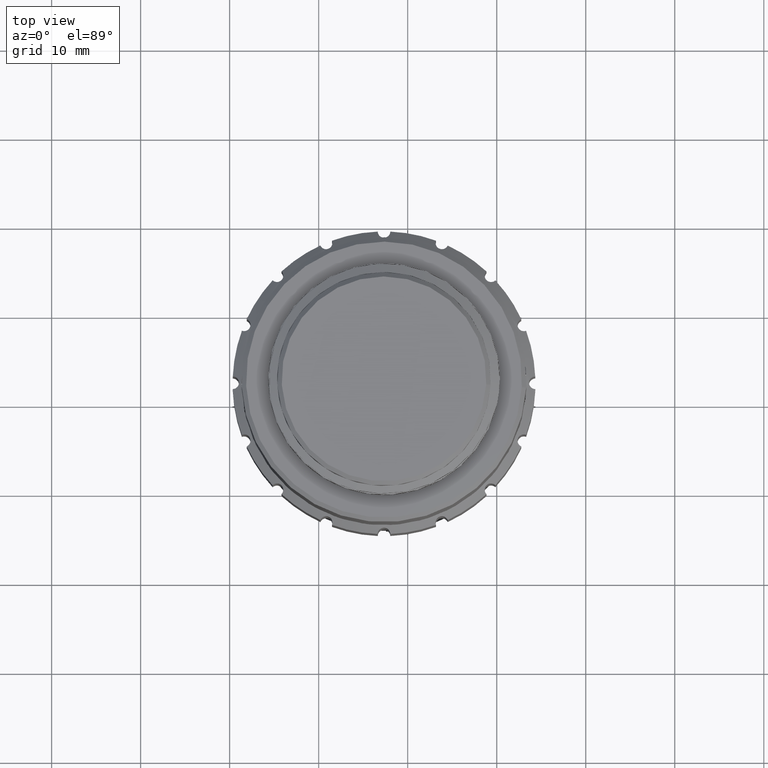
[diagram: clean part render]
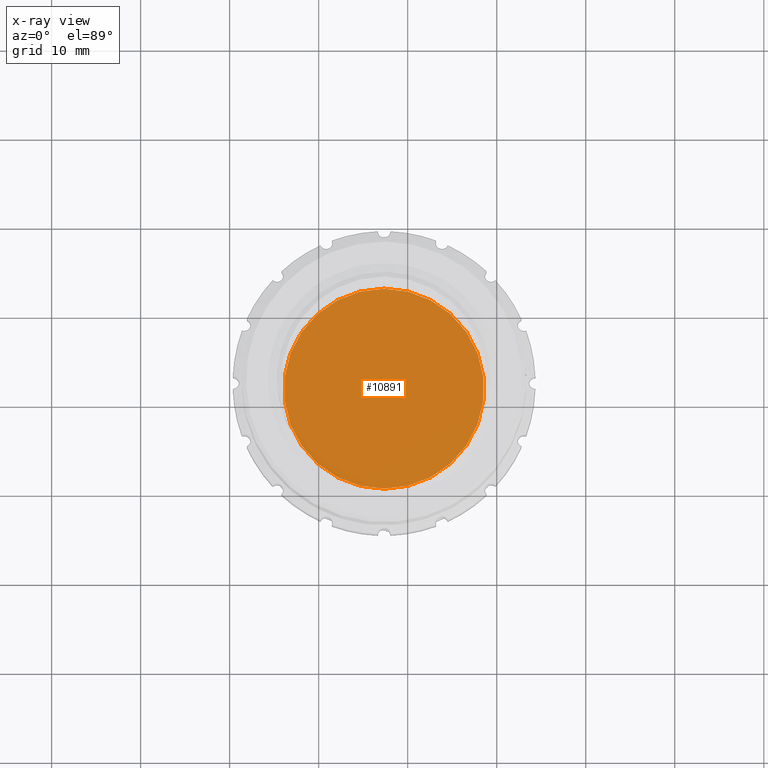
[diagram: x-ray — body ghosted, one internal face saturated and labeled with its STEP entity id]
A machine part, top view, then the same camera in x-ray: the body is ghosted and one INTERNAL B-rep face — a face not visible from any outside direction — is saturated and labeled: STEP entity #10891.
In plain terms, the highlighted planar face has unit normal (0, 0, -1).
Its self-contained STEP definition (entity closure, byte-faithful):
#328 = CARTESIAN_POINT ( 'NONE',  ( -153.8725490382066710, 78.19017241058202217, -32.46530342341161912 ) ) ;
#4391 = EDGE_CURVE ( 'NONE', #10411, #10411, #10723, .T. ) ;
#7010 = EDGE_LOOP ( 'NONE', ( #16764 ) ) ;
#8908 = CARTESIAN_POINT ( 'NONE',  ( -122.6630341068842824, 33.24796033898384451, -32.46530342341162623 ) ) ;
#9675 = FACE_OUTER_BOUND ( 'NONE', #7010, .T. ) ;
#10411 = VERTEX_POINT ( 'NONE', #8908 ) ;
#10609 = DIRECTION ( 'NONE',  ( -0.000000000000000000, -1.318609258053554868E-16, 1.000000000000000000 ) ) ;
#10723 = CIRCLE ( 'NONE', #12967, 11.23265750654520900 ) ;
#10891 = ADVANCED_FACE ( 'NONE', ( #9675 ), #13455, .F. ) ;
#11752 = DIRECTION ( 'NONE',  ( 0.000000000000000000, 1.000000000000000000, 0.000000000000000000 ) ) ;
#12967 = AXIS2_PLACEMENT_3D ( 'NONE', #13159, #10609, #11752 ) ;
#13159 = CARTESIAN_POINT ( 'NONE',  ( -122.6630341068842824, 22.01530283243863195, -32.46530342341162623 ) ) ;
#13455 = PLANE ( 'NONE',  #15388 ) ;
#13628 = DIRECTION ( 'NONE',  ( 0.000000000000000000, 1.318609258053554868E-16, -1.000000000000000000 ) ) ;
#14851 = DIRECTION ( 'NONE',  ( 0.000000000000000000, 1.000000000000000000, 1.318609258053554868E-16 ) ) ;
#15388 = AXIS2_PLACEMENT_3D ( 'NONE', #328, #13628, #14851 ) ;
#16764 = ORIENTED_EDGE ( 'NONE', *, *, #4391, .T. ) ;